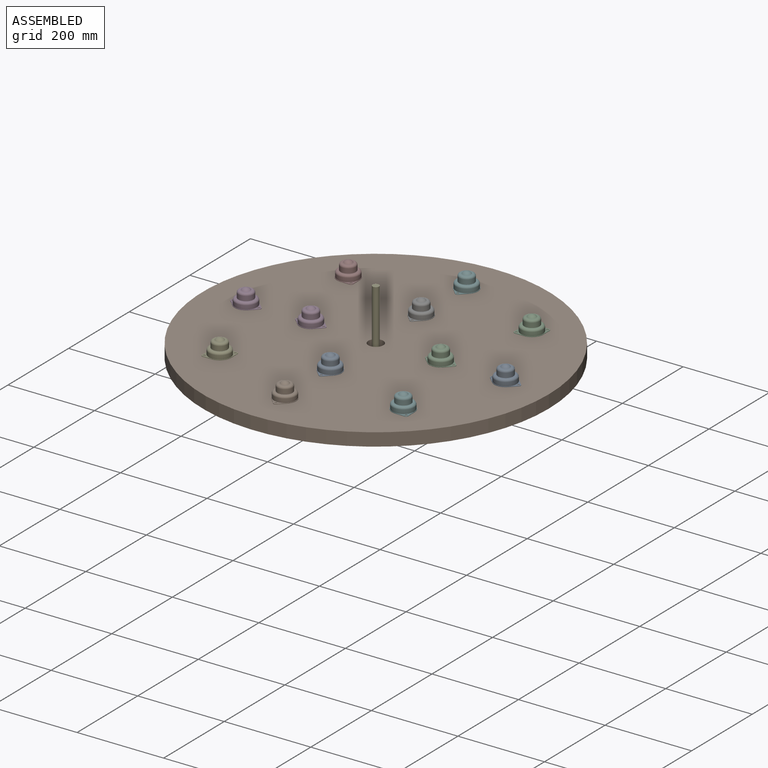
[diagram: assembled view]
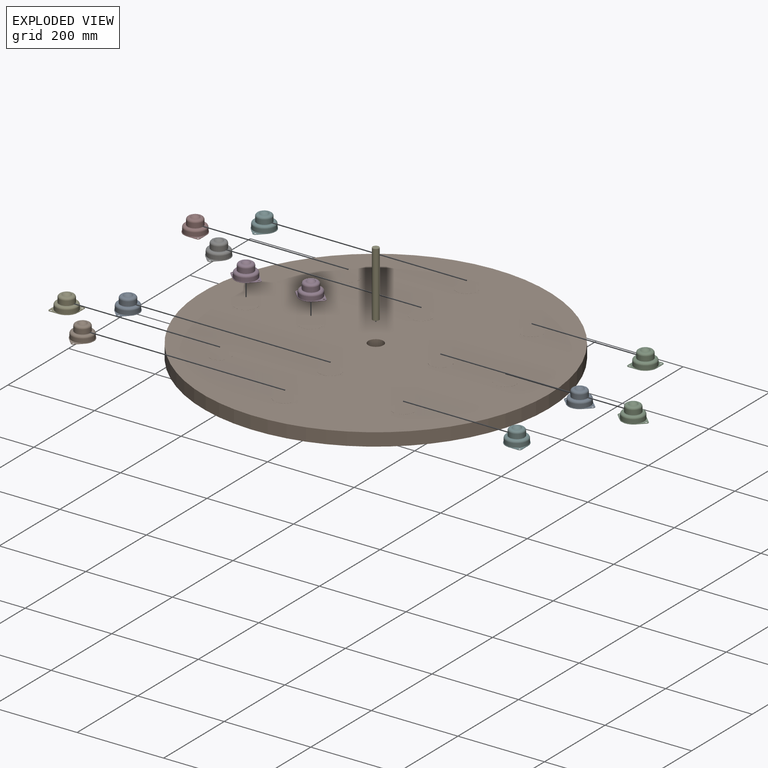
[diagram: exploded view]
GUIDED TOUR — MATED ASSEMBLY (Onshape document 89b214502259ac3c22145656, AutoMate assembly 89b214502259ac3c22145656_a04bf865c14bba6a0f3c119d_67b337b2db32f000cfd4aa0b_default)

This assembly has 14 components, labeled P0..P13 below (a component is one placed occurrence of a part; the same part can appear more than once), held together by 3 mates. A mate is a constraint between two components; its type names the relative motion it leaves free:
  CYLINDRICAL — leaves both rotation about and translation along the listed axis free.
Axis/direction vectors are unit vectors and 'through' points are millimeter coordinates, both in the assembly's world frame.

MATES
  1. CYLINDRICAL "Cylindrical 3": P4 <-> P1, axis (0.000, 0.000, -1.000) through (-2.19, -10.92, -29.99) mm
  2. CYLINDRICAL "Cylindrical 1": P3 <-> P1, axis (0.000, 0.000, 1.000) through (-302.19, -10.92, 1.01) mm
  3. CYLINDRICAL "Cylindrical 2": P11 <-> P1, axis (0.000, 0.000, -1.000) through (-152.19, -10.92, 1.01) mm

ASSEMBLY ORDER
  1. P13 — the base component [order verified]
  2. P10 [order verified]
  3. P11 [order verified]
  4. P12 [order verified]
  5. P6 [order verified]
  6. P7 [order verified]
  7. P2 [order verified]
  8. P0 [order verified]
  9. P9 [order verified]
  10. P8 [order verified]
  11. P5 [order verified]
  12. P3 [order verified]
  13. P1 [order verified]
  14. P4 [order verified]
Order-tag legend:
  [order verified] — this step's position reverses a verified removal order: the component was checked to insert without passing through the ones already placed.

Of the 14 components, 13 carry the full construction recipe — the FeatureScript program that regenerates the part's solid from scratch; the rest are supplied as boundary geometry only.
Because this assembly has more than 12 components, the tour below covers the 12 most significant ones individually (every recipe-attached component first, then the largest by part volume), in assembly order; the remaining 2 are summarized together in a grouped section at the end.
Each toured component is shown spotlighted twice — in the assembled view, then in the exploded view, where a leader line traces a displaced component back to its assembled socket (saturated green if recipe-attached, orange if geometry-only; every other component desaturated gray) — followed by its recipe or geometry summary and the mates that hold it.
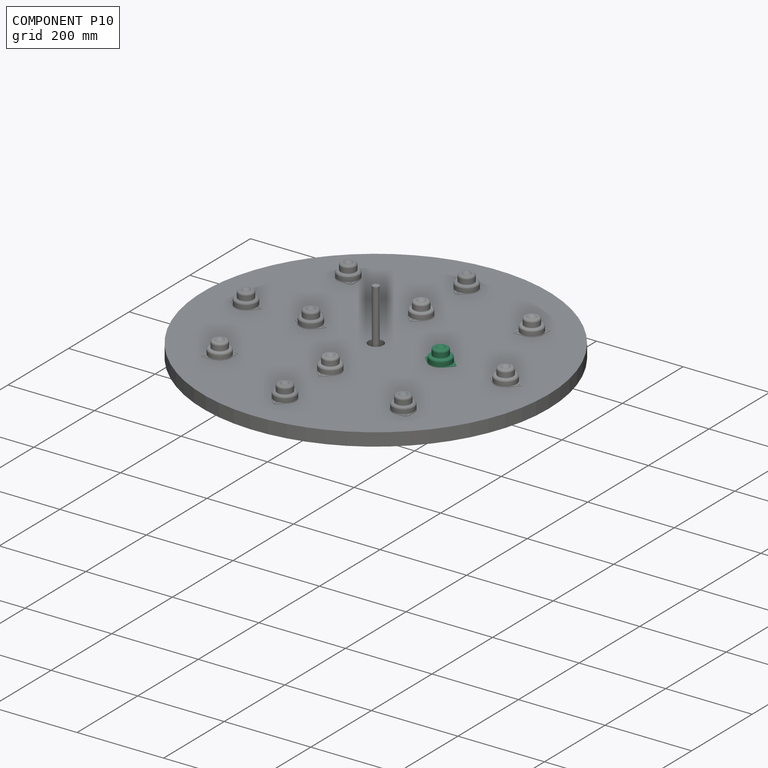
[diagram: component P10 — assembled]
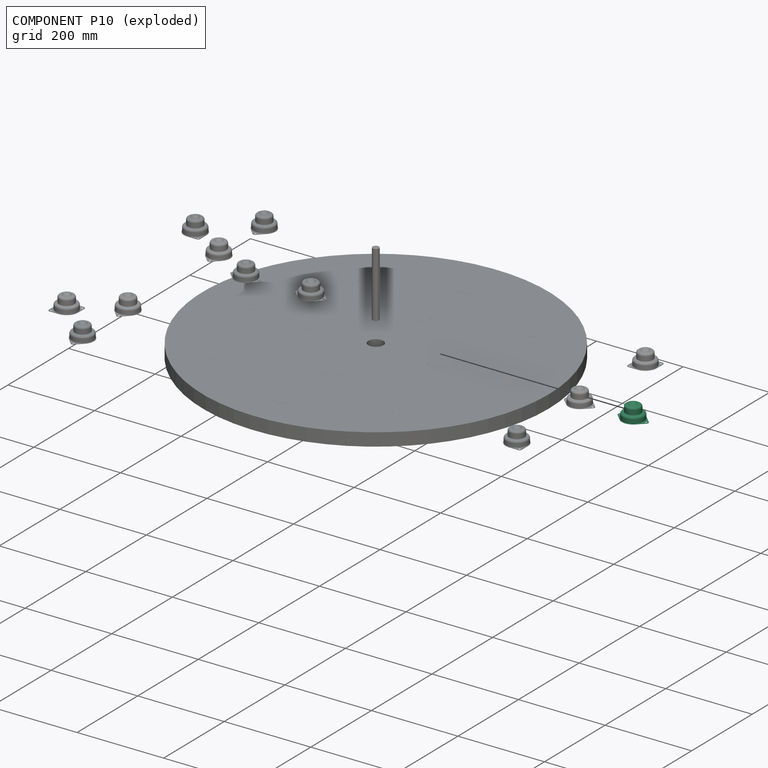
[diagram: component P10 — exploded]
COMPONENT P10 — same part as P0 (CADFS 00546991); its construction recipe is shown at P0.
Held by: no mates (free).
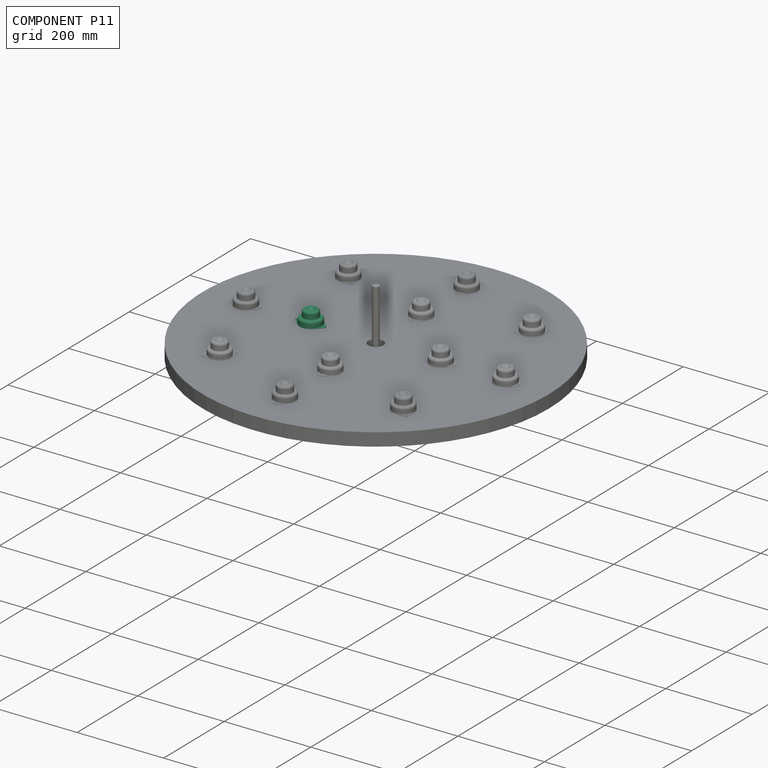
[diagram: component P11 — assembled]
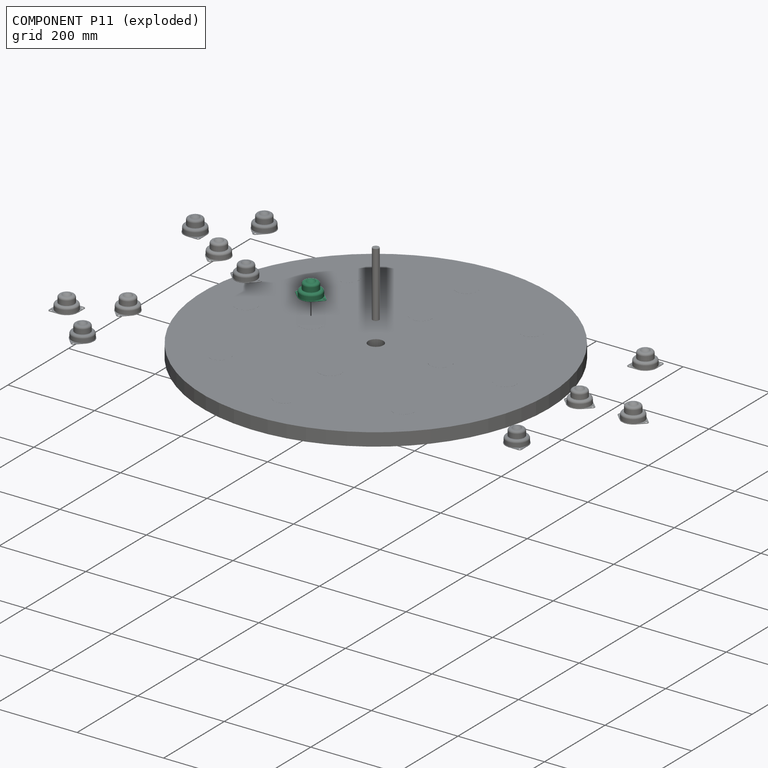
[diagram: component P11 — exploded]
COMPONENT P11 — same part as P0 (CADFS 00546991); its construction recipe is shown at P0.
Held by: CYLINDRICAL mate "Cylindrical 2" to P1.
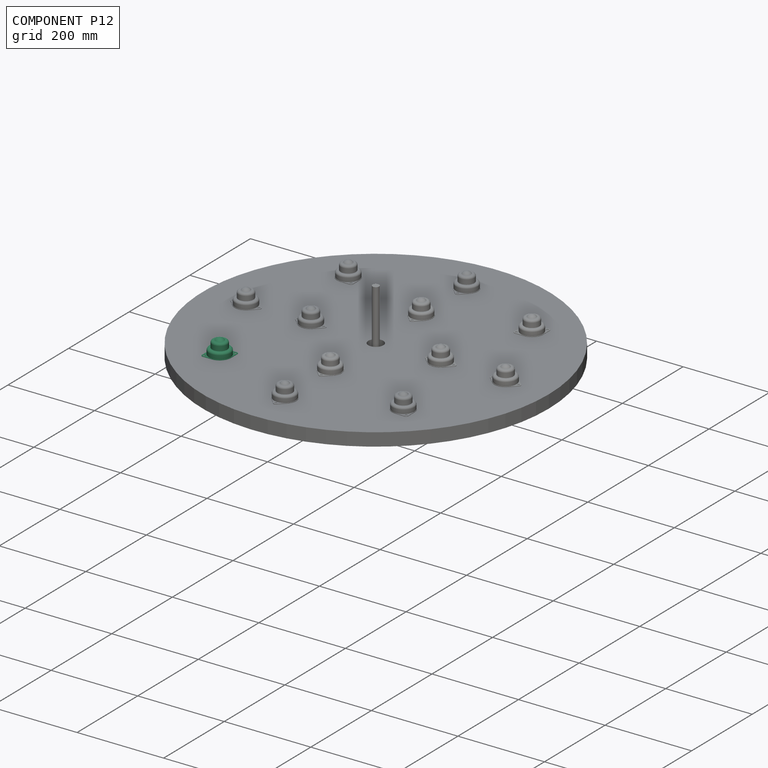
[diagram: component P12 — assembled]
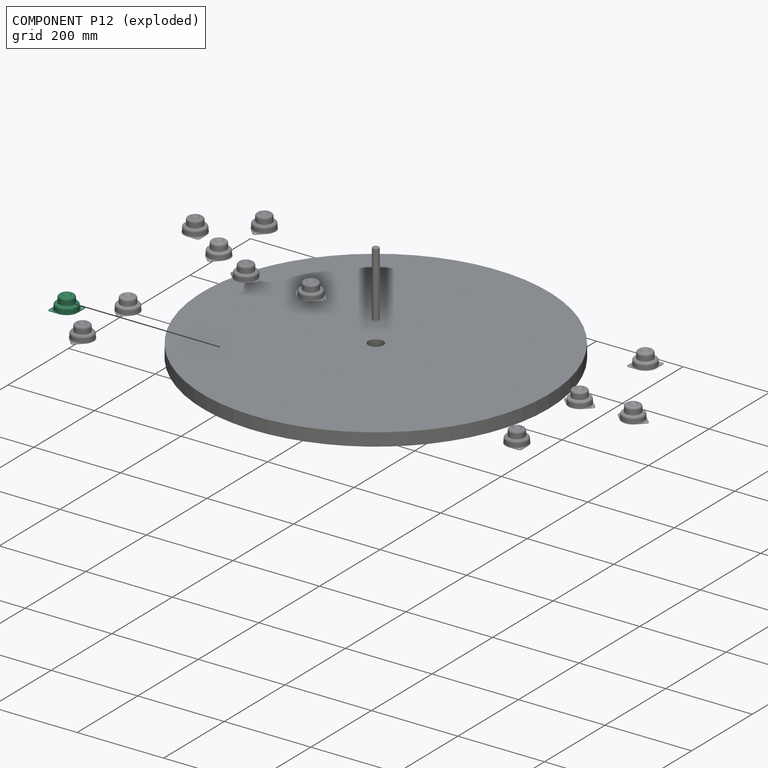
[diagram: component P12 — exploded]
COMPONENT P12 — same part as P0 (CADFS 00546991); its construction recipe is shown at P0.
Held by: no mates (free).
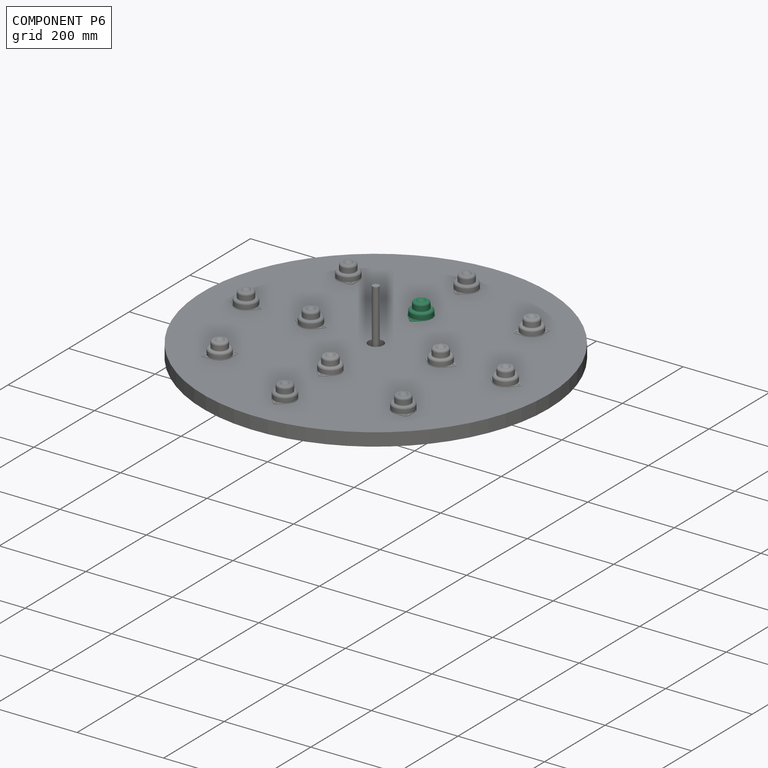
[diagram: component P6 — assembled]
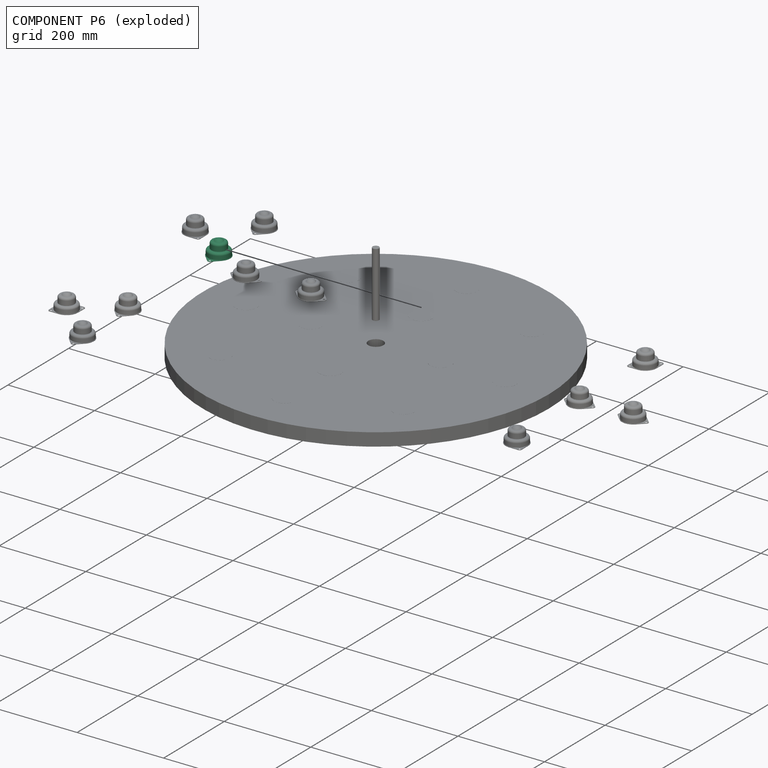
[diagram: component P6 — exploded]
COMPONENT P6 — same part as P0 (CADFS 00546991); its construction recipe is shown at P0.
Held by: no mates (free).
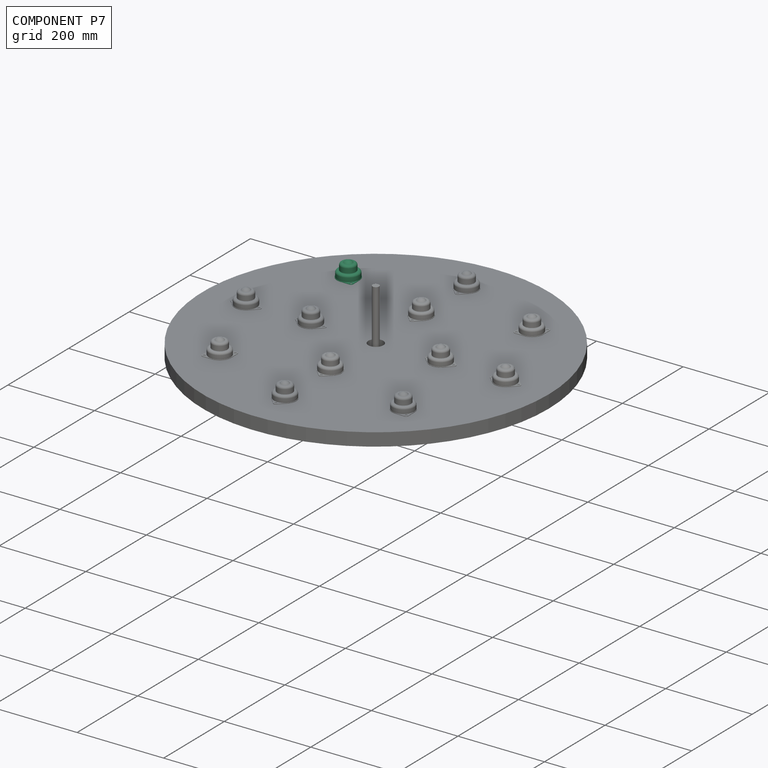
[diagram: component P7 — assembled]
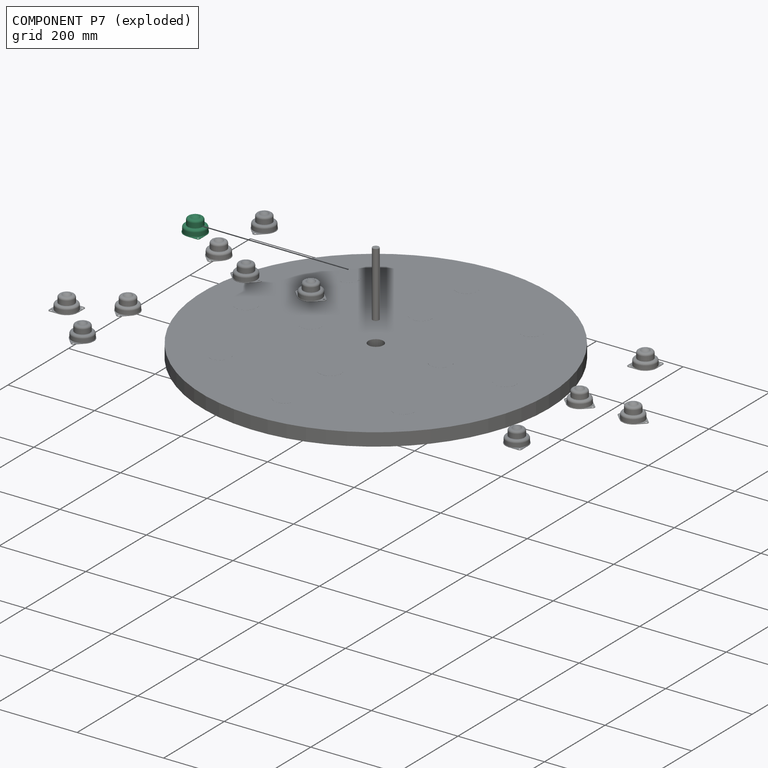
[diagram: component P7 — exploded]
COMPONENT P7 — same part as P0 (CADFS 00546991); its construction recipe is shown at P0.
Held by: no mates (free).
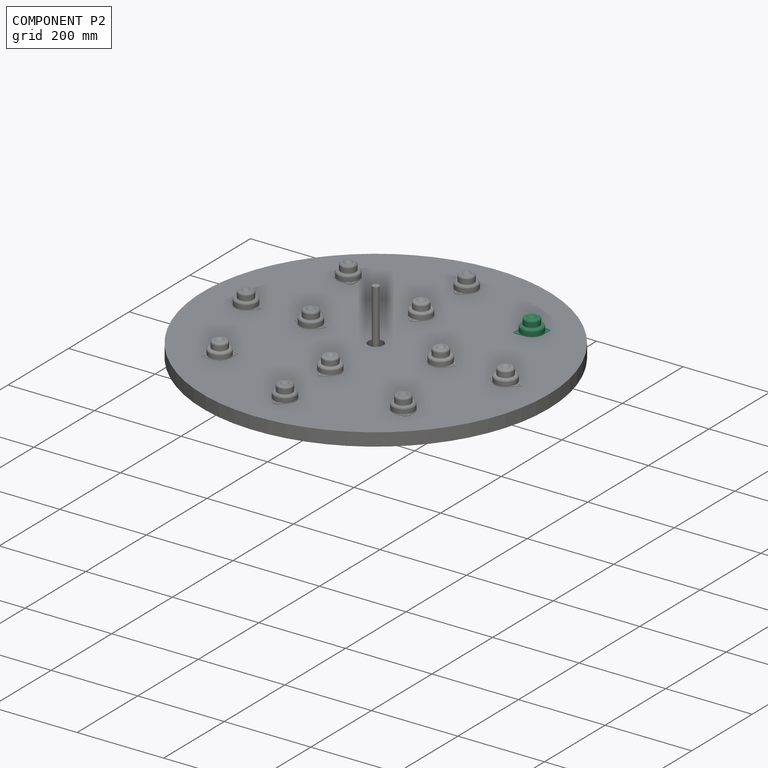
[diagram: component P2 — assembled]
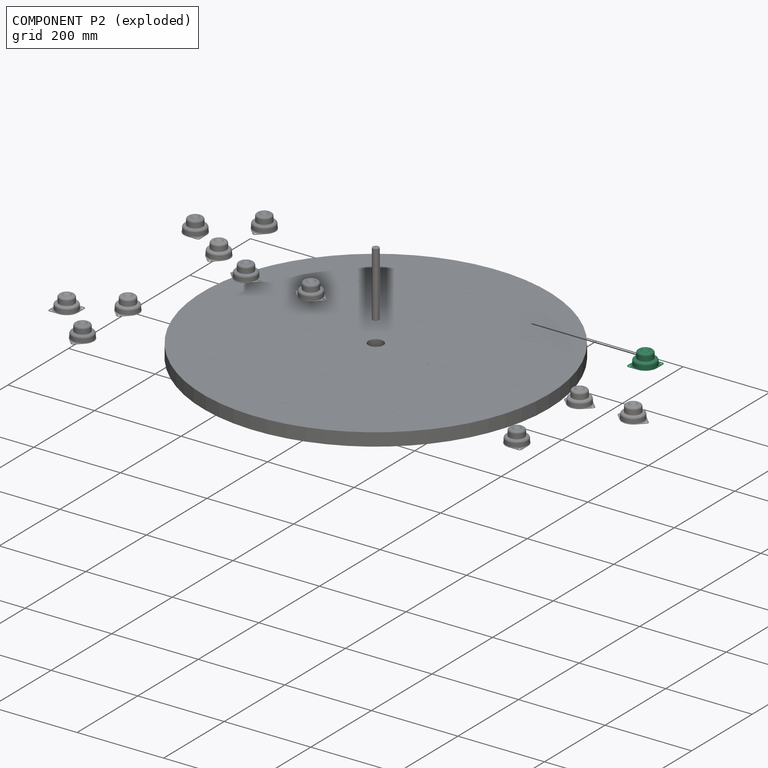
[diagram: component P2 — exploded]
COMPONENT P2 — same part as P0 (CADFS 00546991); its construction recipe is shown at P0.
Held by: no mates (free).
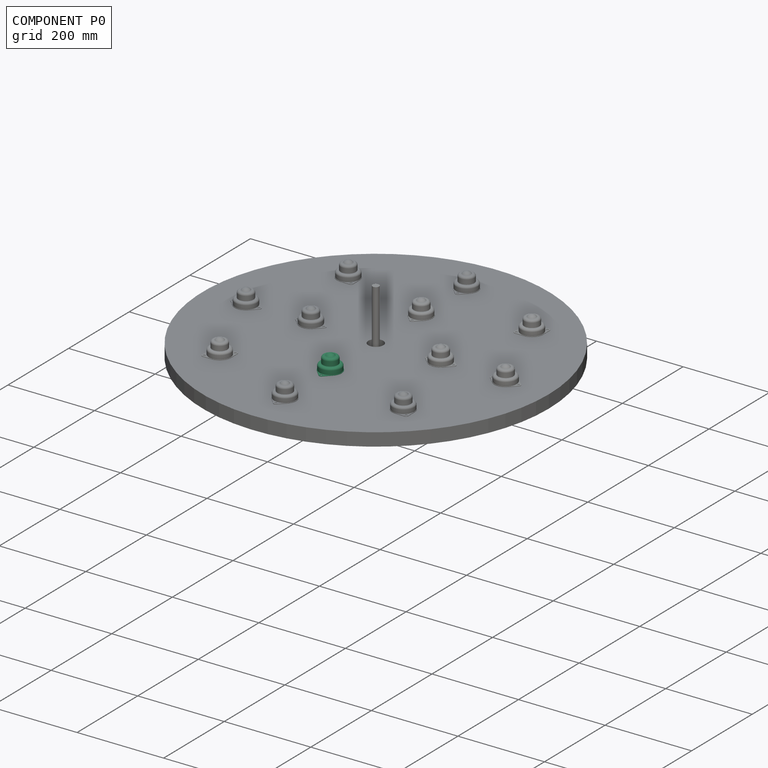
[diagram: component P0 — assembled]
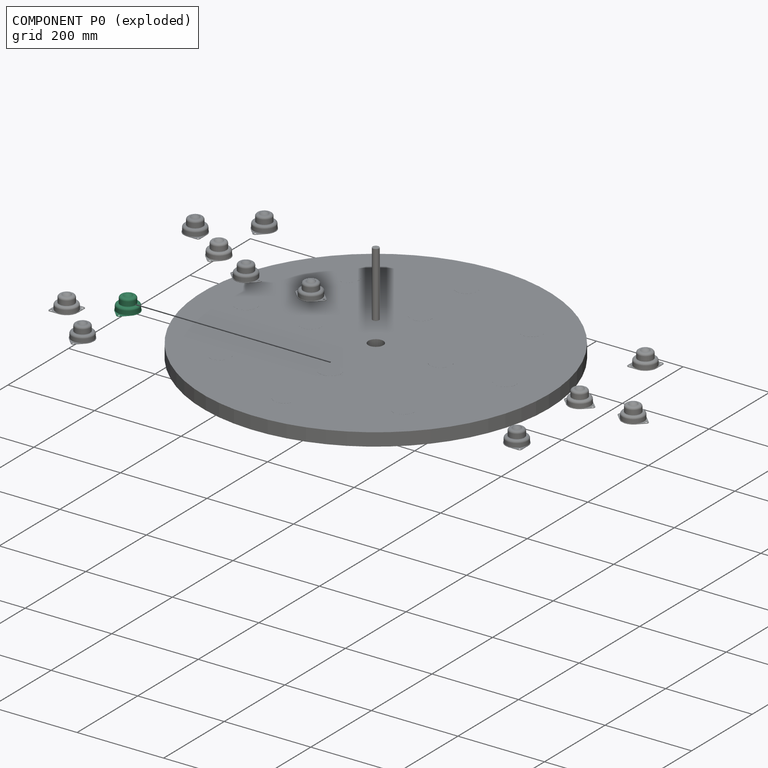
[diagram: component P0 — exploded]
COMPONENT P0 — recipe-attached (CADFS 00546991, mesh-verified: the recipe's output STEP matches this component's geometry to below the mesh-comparison resolution (tessellation chordal tolerance ~0.141 mm)).
Held by: no mates (free).
Construction recipe (FeatureScript — the CAD program that rebuilds this solid; sketch coordinates are in the units given by the * unit suffixes, e.g. mm):

FeatureScript 1511;
import(path : "onshape/std/geometry.fs", version : "1511.0");
import(path : "onshape/std/common.fs", version : "1511.0");
const mm = millimeter;
const VERTEX = EntityType.VERTEX;
const EDGE = EntityType.EDGE;
const FACE = EntityType.FACE;
const BODY = EntityType.BODY;
function v(x, y){return vector(x, y);}
function OD(order){return orderDisambiguation(order);}
function OSD(set){return originalSetDisambiguation(set);}
function TD(topology){return topologyDisambiguation(topology);}
function TDD(query){return trueDependencyDisambiguation(query);}
function sQuery(a, b, c) {return sketchEntityQuery(a, b, c);}

annotation { "Feature Type Name" : "Feature", "Feature Type Description" : "" }
export const myFeature = defineFeature(function(context is Context, id is Id, definition is map)
    precondition{}
    {
        {
            var Q0;
            Q0=qCreatedBy(makeId("Front.planeOp"),FACE);
            var sketch = newSketch(context, id + "F0", { "sketchPlane" : qUnion([Q0])});
            skLineSegment(sketch, "E0.bottom", {"start": v(-25, 0) * mm, "end": v(0, 0) * mm});
            skLineSegment(sketch, "E0.right", {"start": v(0, 0) * mm, "end": v(0, 35) * mm});
            skLineSegment(sketch, "E1", {"start": v(-25, 14.13) * mm, "end": v(-17.5, 14.13) * mm});
            skLineSegment(sketch, "E2", {"start": v(-17.5, 14.13) * mm, "end": v(-17.5, 30) * mm});
            skLineSegment(sketch, "E3", {"start": v(-17.5, 30) * mm, "end": v(-10, 30) * mm});
            skArc(sketch, "E4", {"start": v(-10, 30) * mm, "mid": v(-5.6, 33.68) * mm, "end": v(0, 35) * mm});
            skLineSegment(sketch, "E5", {"start": v(-25, 14.13) * mm, "end": v(-25, 0) * mm});
            skSolve(sketch);
        }
        {
            var Q0;
            Q0=makeQuery(id+"F0.imprint","IMPRINT",FACE,{"disambiguationData":[TD([[makeQuery(id+"F0.imprint","IMPRINT",EDGE,{"derivedFrom":sQuery(id+"F0.wireOp",EDGE,"E0.bottom")}),1.0]])]});
            var Q1;
            Q1=sQuery(id+"F0.wireOp",EDGE,"E0.right");
            revolve(context, id + "F1", {"entities" : qUnion([Q0]), "axis" : qUnion([Q1]), "revolveType" : RevolveType.FULL});
        }
        {
            var Q0;
            Q0=makeQuery(id+"F1.opRevolve","SWEPT_EDGE",EDGE,{"disambiguationData":[OSD([sQuery(id+"F0.wireOp",EDGE,"E2"),sQuery(id+"F0.wireOp",EDGE,"E3")])]});
            var Q1;
            Q1=makeQuery(id+"F1.opRevolve","SWEPT_EDGE",EDGE,{"disambiguationData":[OSD([sQuery(id+"F0.wireOp",EDGE,"E1"),sQuery(id+"F0.wireOp",EDGE,"E5")])]});
            fillet(context, id + "F2", {"entities" : qUnion([Q0, Q1]), "radius" : 5 * mm, "tangentPropagation" : true, "allowEdgeOverflow" : false});
        }
        {
            var Q0;
            Q0=makeQuery(id+"F1.opRevolve","SWEPT_FACE",FACE,{"disambiguationData":[OSD([sQuery(id+"F0.wireOp",EDGE,"E0.bottom")])]});
            var sketch = newSketch(context, id + "F3", { "sketchPlane" : qUnion([Q0])});
            skLineSegment(sketch, "E6", {"start": v(-35, 0) * mm, "end": v(35, 0) * mm});
            skCircle(sketch, "E7", {"center": v(-30, 0) * mm, "radius": 2.5 * mm});
            skCircle(sketch, "E8", {"center": v(30, 0) * mm, "radius": 2.5 * mm});
            skArc(sketch, "E9", {"start": v(-33.5, 3.57) * mm, "mid": v(-35, 0) * mm, "end": v(-33.5, -3.57) * mm});
            skArc(sketch, "E10", {"start": v(33.5, 3.57) * mm, "mid": v(35, 0) * mm, "end": v(33.5, -3.57) * mm});
            skArc(sketch, "E11", {"start": v(-18.2, 18.57) * mm, "mid": v(0, 26) * mm, "end": v(18.2, 18.57) * mm});
            skArc(sketch, "E12", {"start": v(-18.2, -18.57) * mm, "mid": v(0, -26) * mm, "end": v(18.2, -18.57) * mm});
            skLineSegment(sketch, "E13", {"start": v(-18.2, 18.57) * mm, "end": v(-33.5, 3.57) * mm});
            skLineSegment(sketch, "E14", {"start": v(18.2, 18.57) * mm, "end": v(33.5, 3.57) * mm});
            skLineSegment(sketch, "E15", {"start": v(-33.5, -3.57) * mm, "end": v(-18.2, -18.57) * mm});
            skLineSegment(sketch, "E16", {"start": v(33.5, -3.57) * mm, "end": v(18.2, -18.57) * mm});
            skSolve(sketch);
        }
        {
            var Q0;
            Q0 = qSketchRegion(id + "F3", true);
            extrude(context, id + "F4", {"entities" : qUnion([Q0]), "operationType" : NewBodyOperationType.ADD, "depth" : 1 * mm, "offsetDistance" : 25 * mm});
        }
    });
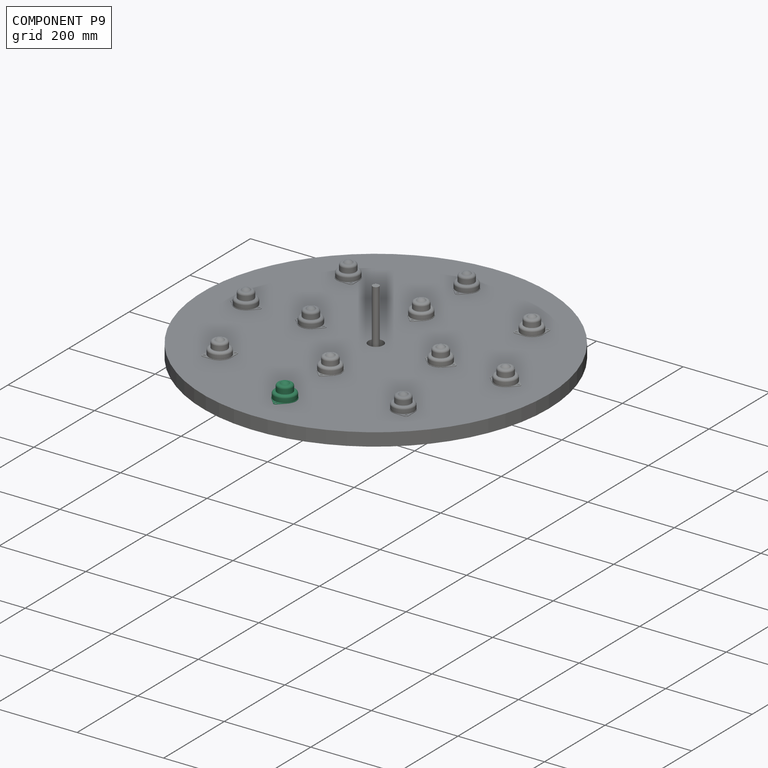
[diagram: component P9 — assembled]
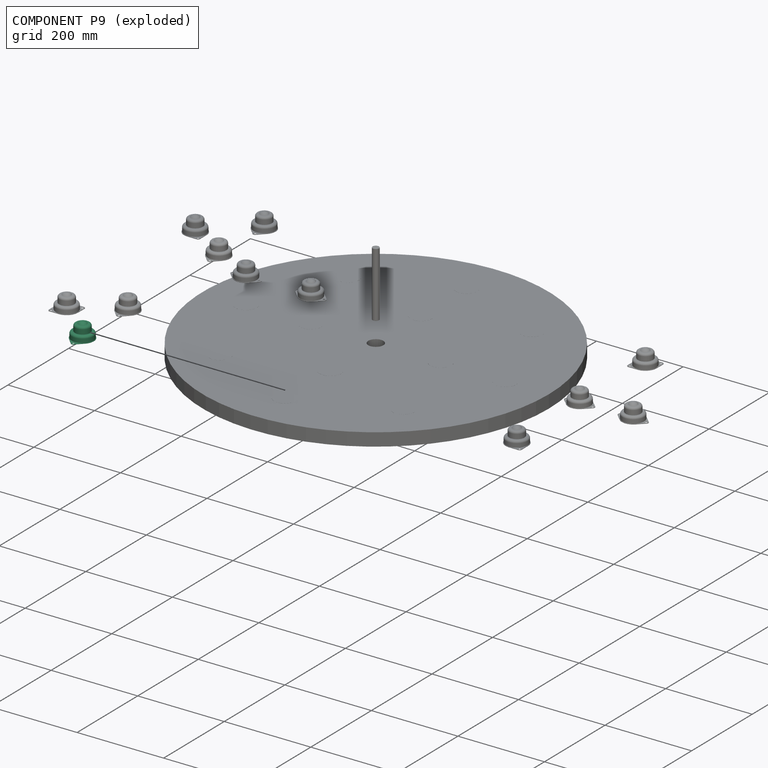
[diagram: component P9 — exploded]
COMPONENT P9 — same part as P0 (CADFS 00546991); its construction recipe is shown at P0.
Held by: no mates (free).
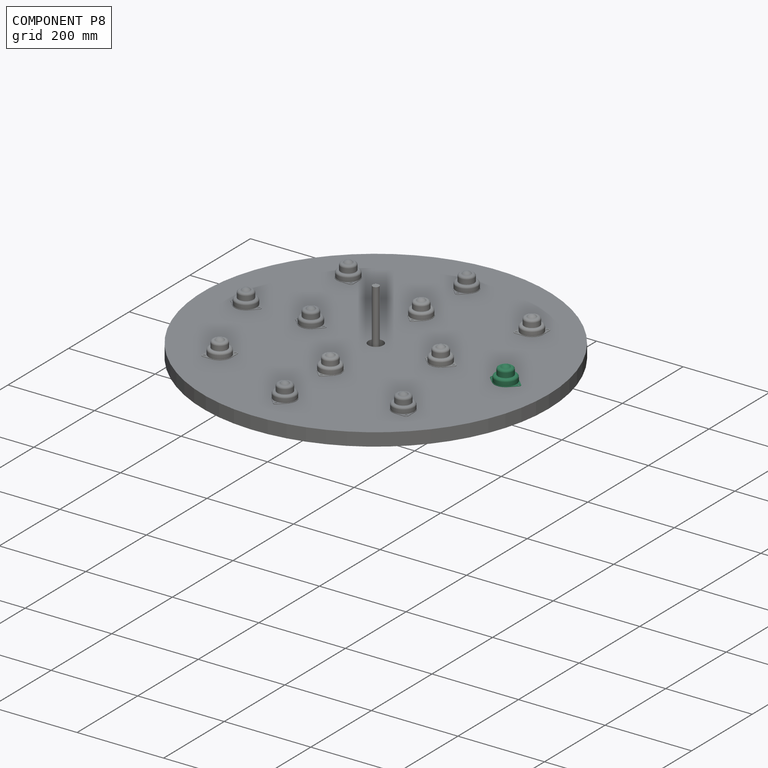
[diagram: component P8 — assembled]
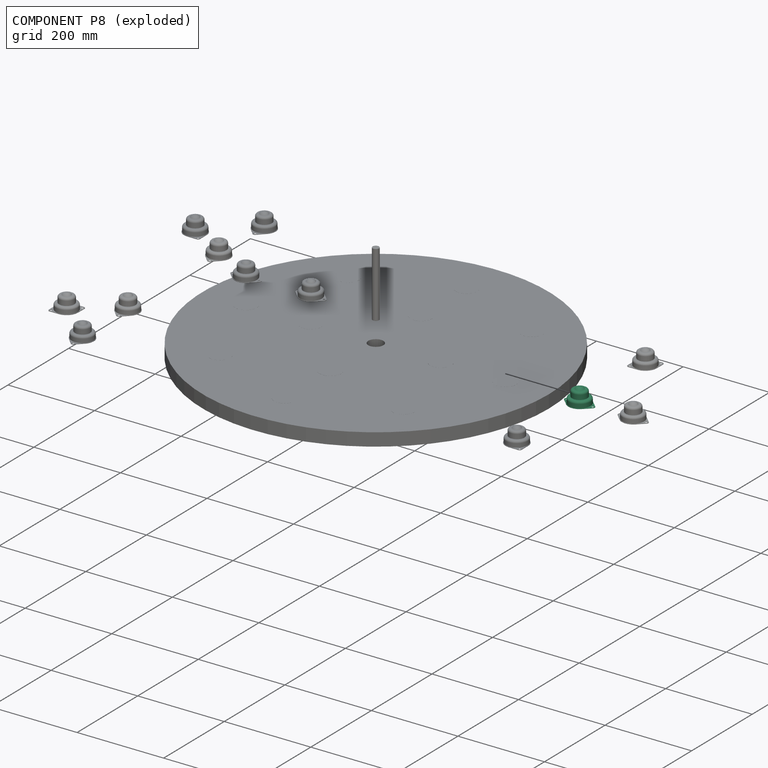
[diagram: component P8 — exploded]
COMPONENT P8 — same part as P0 (CADFS 00546991); its construction recipe is shown at P0.
Held by: no mates (free).
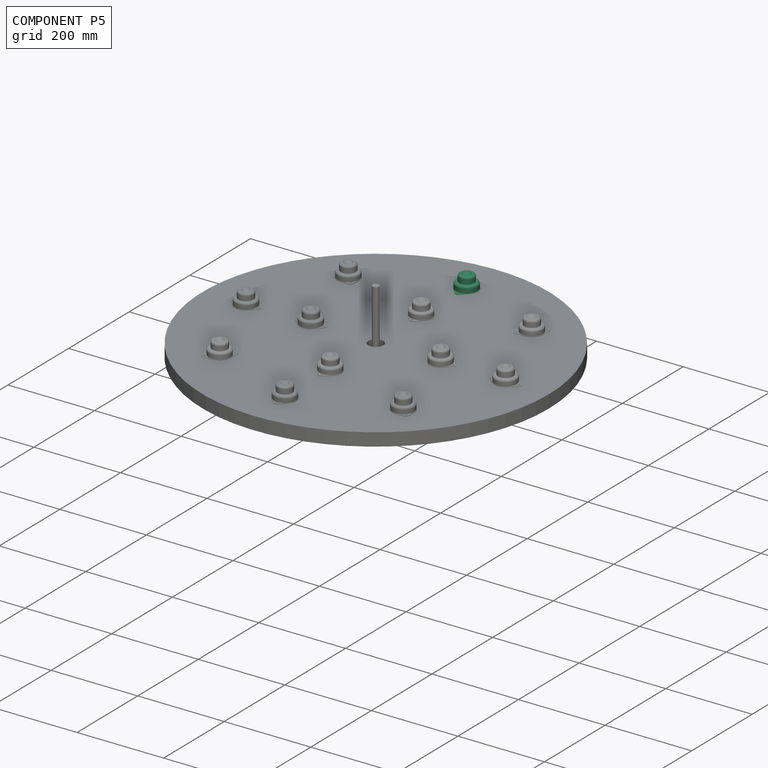
[diagram: component P5 — assembled]
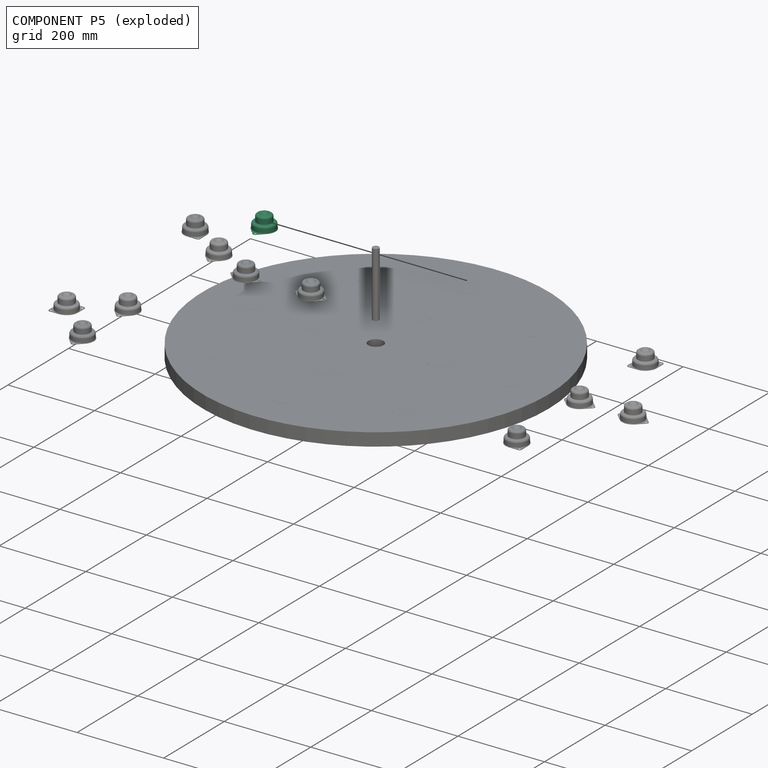
[diagram: component P5 — exploded]
COMPONENT P5 — same part as P0 (CADFS 00546991); its construction recipe is shown at P0.
Held by: no mates (free).
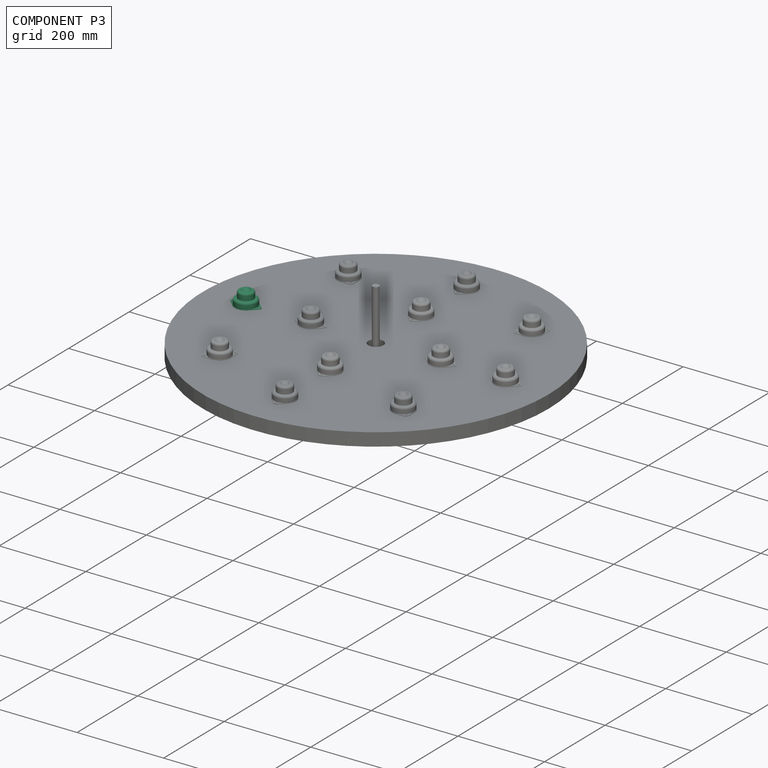
[diagram: component P3 — assembled]
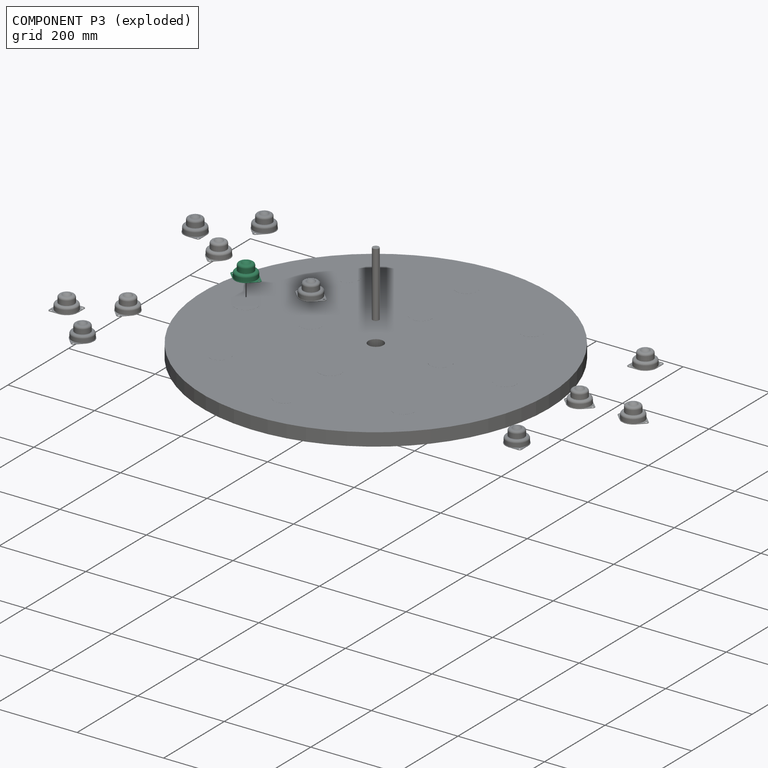
[diagram: component P3 — exploded]
COMPONENT P3 — same part as P0 (CADFS 00546991); its construction recipe is shown at P0.
Held by: CYLINDRICAL mate "Cylindrical 1" to P1.
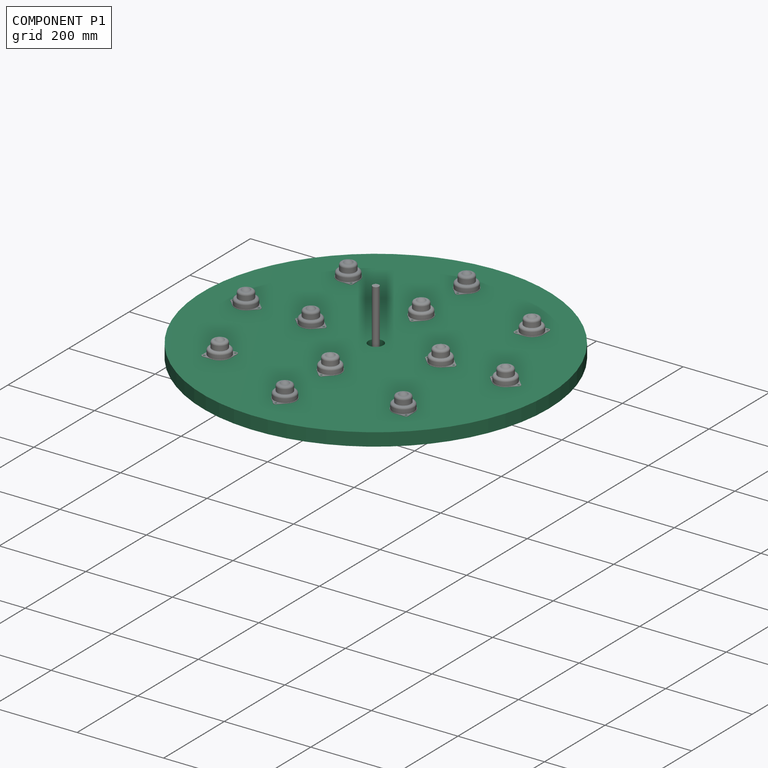
[diagram: component P1 — assembled]
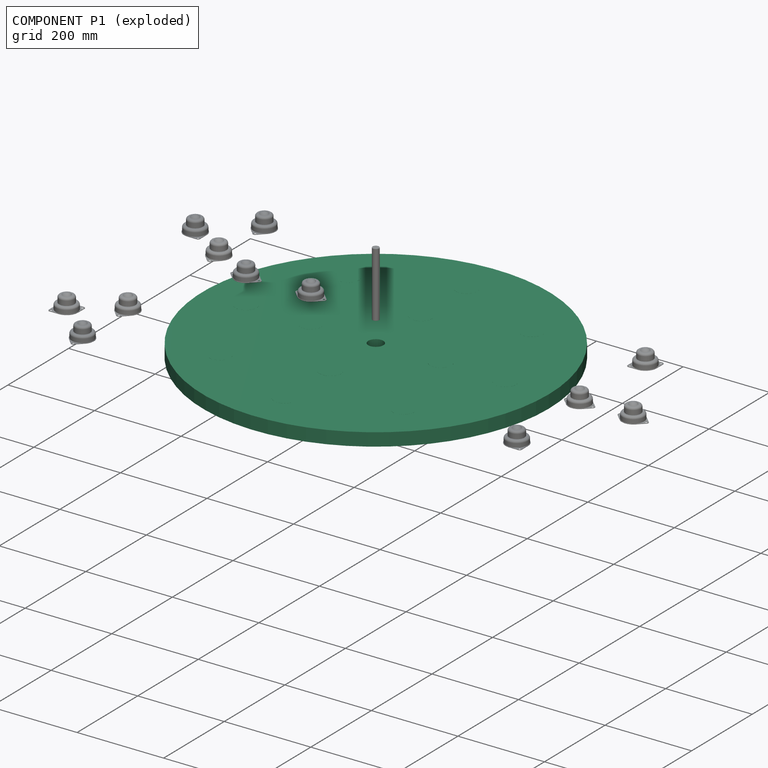
[diagram: component P1 — exploded]
COMPONENT P1 — recipe-attached (CADFS 00546990, mesh-verified: the recipe's output STEP matches this component's geometry to below the mesh-comparison resolution (tessellation chordal tolerance ~1.7 mm)).
Held by: CYLINDRICAL mate "Cylindrical 3" to P4; CYLINDRICAL mate "Cylindrical 1" to P3; CYLINDRICAL mate "Cylindrical 2" to P11.
Construction recipe (FeatureScript — the CAD program that rebuilds this solid; sketch coordinates are in the units given by the * unit suffixes, e.g. mm):

FeatureScript 1511;
import(path : "onshape/std/geometry.fs", version : "1511.0");
import(path : "onshape/std/common.fs", version : "1511.0");
const mm = millimeter;
const VERTEX = EntityType.VERTEX;
const EDGE = EntityType.EDGE;
const FACE = EntityType.FACE;
const BODY = EntityType.BODY;
function v(x, y){return vector(x, y);}
function OD(order){return orderDisambiguation(order);}
function OSD(set){return originalSetDisambiguation(set);}
function TD(topology){return topologyDisambiguation(topology);}
function TDD(query){return trueDependencyDisambiguation(query);}
function sQuery(a, b, c) {return sketchEntityQuery(a, b, c);}

annotation { "Feature Type Name" : "Feature", "Feature Type Description" : "" }
export const myFeature = defineFeature(function(context is Context, id is Id, definition is map)
    precondition{}
    {
        {
            var Q0;
            Q0=qCreatedBy(makeId("Top.planeOp"),FACE);
            var sketch = newSketch(context, id + "F0", { "sketchPlane" : qUnion([Q0])});
            skCircle(sketch, "E0", {"center": v(0, 0) * mm, "radius": 400 * mm});
            skSolve(sketch);
        }
        {
            var Q0;
            Q0=makeQuery(id+"F0.imprint","IMPRINT",FACE,{"disambiguationData":[TD([[makeQuery(id+"F0.imprint","IMPRINT",EDGE,{"derivedFrom":sQuery(id+"F0.wireOp",EDGE,"E0")}),1.0]])]});
            extrude(context, id + "F1", {"entities" : qUnion([Q0]), "depth" : 30 * mm, "offsetDistance" : 25 * mm});
        }
        {
            var Q0;
            Q0=makeQuery(id+"F1.opExtrude","CAP_FACE",FACE,{"disambiguationData":[OSD([sQuery(id+"F0.wireOp",EDGE,"E0")])],"isStart":false});
            var sketch = newSketch(context, id + "F2", { "sketchPlane" : qUnion([Q0])});
            skCircle(sketch, "E1", {"center": v(0, 0) * mm, "radius": 150 * mm});
            skCircle(sketch, "E2", {"center": v(0, 0) * mm, "radius": 300 * mm});
            skLineSegment(sketch, "E3", {"start": v(0, 408.52) * mm, "end": v(0, -368.47) * mm});
            skLineSegment(sketch, "E4", {"start": v(451, 0) * mm, "end": v(-503.41, 0) * mm});
            skLineSegment(sketch, "E5", {"start": v(-323.18, -323.18) * mm, "end": v(360.31, 360.31) * mm});
            skLineSegment(sketch, "E6", {"start": v(-331.16, 331.16) * mm, "end": v(365.47, -365.47) * mm});
            skSolve(sketch);
        }
        {
            var Q0;
            {var subQ0=sQuery(id+"F2.wireOp",EDGE,"E4");var subQ1=sQuery(id+"F2.wireOp",EDGE,"E1");var subQ2=makeQuery(id+"F2.imprint","INTERSECT",VERTEX,{"disambiguationData":[OD(0.0)],"derivedFrom":[subQ1,subQ0]});Q0=makeQuery(id+"F2.imprint","IMPRINT",FACE,{"disambiguationData":[TD([[makeQuery(id+"F2.imprint","IMPRINT",EDGE,{"disambiguationData":[TD([[subQ2,1.0]])],"derivedFrom":subQ1}),-1.0]])]});}
            var sketch = newSketch(context, id + "F3", { "sketchPlane" : qUnion([Q0])});
            skCircle(sketch, "E7", {"center": v(212.13, 212.13) * mm, "radius": 25 * mm});
            skCircle(sketch, "E8", {"center": v(212.13, -212.13) * mm, "radius": 25 * mm});
            skCircle(sketch, "E9", {"center": v(-212.13, -212.13) * mm, "radius": 25 * mm});
            skCircle(sketch, "E10", {"center": v(-212.13, 212.13) * mm, "radius": 25 * mm});
            skCircle(sketch, "E11", {"center": v(0, 150) * mm, "radius": 25 * mm});
            skCircle(sketch, "E12", {"center": v(0, -150) * mm, "radius": 25 * mm});
            skCircle(sketch, "E13", {"center": v(150, 0) * mm, "radius": 25 * mm});
            skCircle(sketch, "E14", {"center": v(-150, 0) * mm, "radius": 25 * mm});
            skCircle(sketch, "E15", {"center": v(0, 300) * mm, "radius": 25 * mm});
            skCircle(sketch, "E16", {"center": v(300, 0) * mm, "radius": 25 * mm});
            skCircle(sketch, "E17", {"center": v(0, -300) * mm, "radius": 25 * mm});
            skCircle(sketch, "E18", {"center": v(-300, 0) * mm, "radius": 25 * mm});
            skSolve(sketch);
        }
        {
            var Q0;
            Q0 = qSketchRegion(id + "F3", true);
            extrude(context, id + "F4", {"entities" : qUnion([Q0]), "operationType" : NewBodyOperationType.ADD, "depth" : 0.1 * mm, "offsetDistance" : 25 * mm});
        }
        {
            var Q0;
            {var subQ0=sQuery(id+"F2.wireOp",EDGE,"E6");var subQ1=sQuery(id+"F2.wireOp",EDGE,"E1");var subQ2=makeQuery(id+"F2.imprint","INTERSECT",VERTEX,{"disambiguationData":[OD(0.0)],"derivedFrom":[subQ1,subQ0]});Q0=makeQuery(id+"F2.imprint","IMPRINT",FACE,{"disambiguationData":[TD([[makeQuery(id+"F2.imprint","IMPRINT",EDGE,{"disambiguationData":[TD([[subQ2,-1.0]])],"derivedFrom":subQ1}),1.0]])]});}
            var sketch = newSketch(context, id + "F5", { "sketchPlane" : qUnion([Q0])});
            skCircle(sketch, "E19", {"center": v(0, 0) * mm, "radius": 17.5 * mm});
            skSolve(sketch);
        }
        {
            var Q0;
            Q0 = qSketchRegion(id + "F5", true);
            extrude(context, id + "F6", {"entities" : qUnion([Q0]), "operationType" : NewBodyOperationType.REMOVE, "oppositeDirection" : true, "depth" : 60 * mm, "offsetDistance" : 25 * mm});
        }
    });
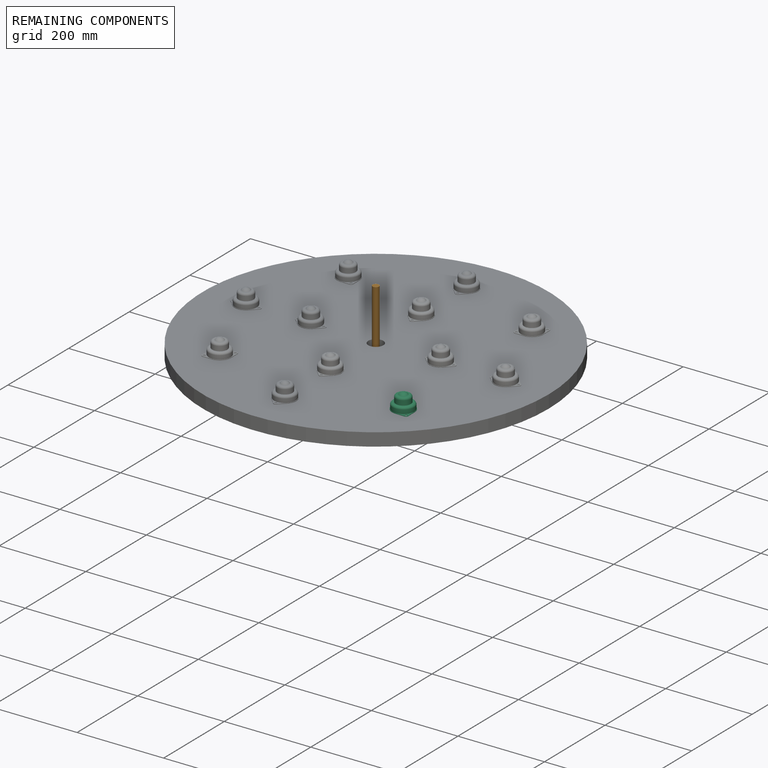
[diagram: remaining components — assembled]
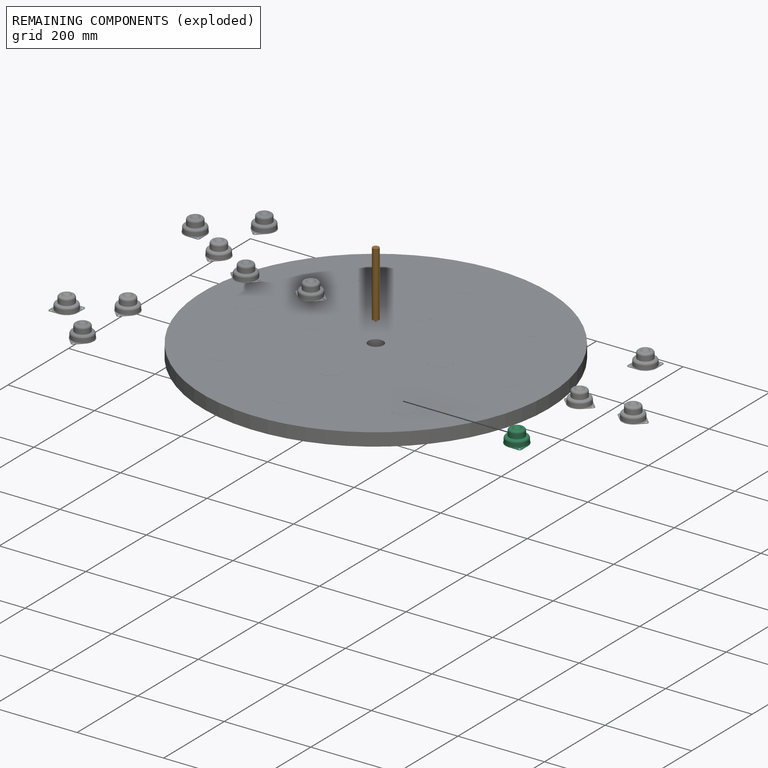
[diagram: remaining components — exploded]
REMAINING COMPONENTS (grouped) — the 2 components below fall outside the per-component tour by the significance rule stated above; both spotlight views highlight the whole group.
  P13: bounding box 70.0 x 54.1 x 36.0 mm, volume 44888 mm^3. Recipe-attached (CADFS 00546991; recipe not printed under the significance rule). Held by: no mates (free).
  P4: bounding box 150.0 x 15.0 x 15.0 mm, volume 26507 mm^3. Held by: CYLINDRICAL mate "Cylindrical 3" to P1.
PROVENANCE & LICENSES
Assembly (occurrences, transforms, mates, per-part STEP geometry): AutoMate dataset, Zenodo record 7776208, CC0.
Construction recipes: CADFS (HuggingFace VladPyatov/CADFS, CC-BY-4.0, layered over the ABC dataset), FeatureScript reconstruction programs keyed by ABC model id.
Join: ABC meta listings map ABC model id -> Onshape documentId; within a shared document, parts are matched by geometric signature (bounding-box dims + volume at 0.1% relative tolerance, exact B-rep face/solid counts).
Verification: 13 of this assembly's 14 components carry a recipe attachment, and every attachment is mesh-verified: the CADFS STEP and the AutoMate member STEP were compared as meshes in their shared local frame (symmetric sampled-point-to-mesh distance); worst across the 13 attachments: below the mesh-comparison resolution (tessellation chordal tolerance ~1.7 mm) on a 1131 mm part.
Renders: orthographic iso camera (az 35 / el 25); the floor grid conveys scale (grid pitch printed in each image; no ruler). In the exploded view each component is displaced by its stored offset vector: the offsets alone carry the explosion direction (mate normal/axis signs are not orientation cues and do not encode it), and separation distances are assigned per mate-chain, not proportionally to assembly-order depth.
